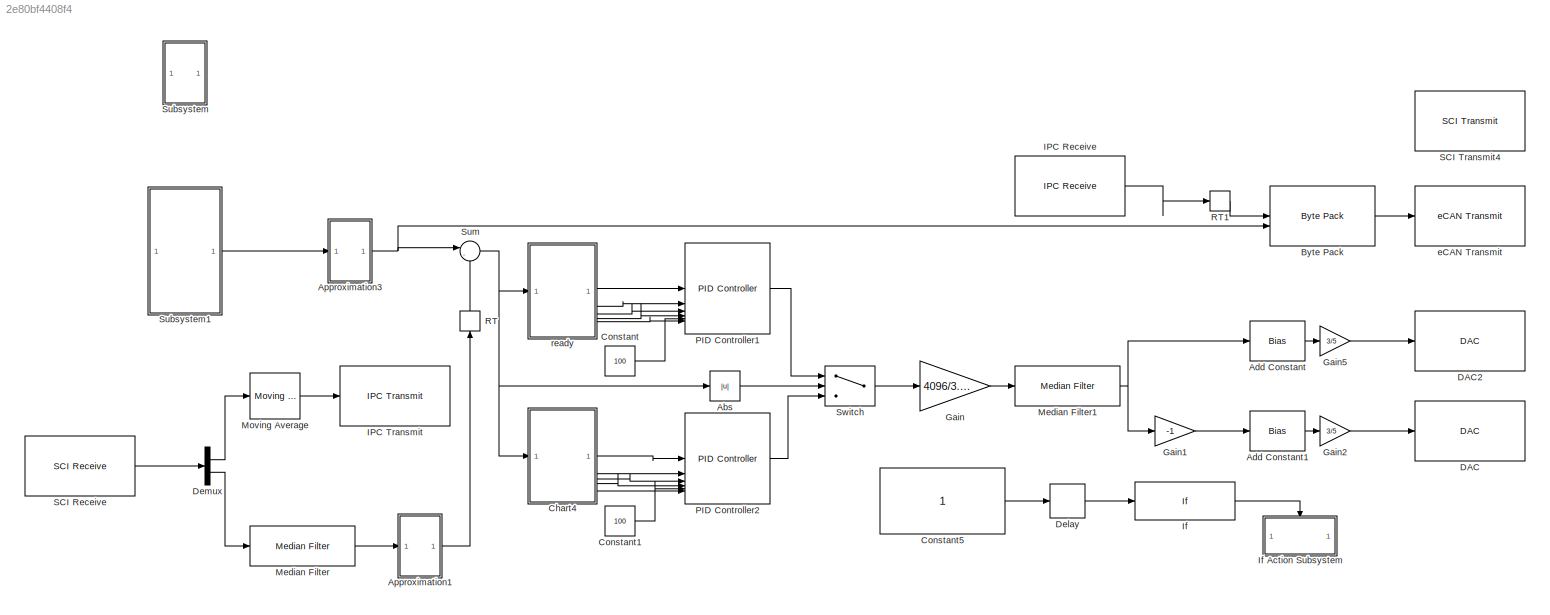
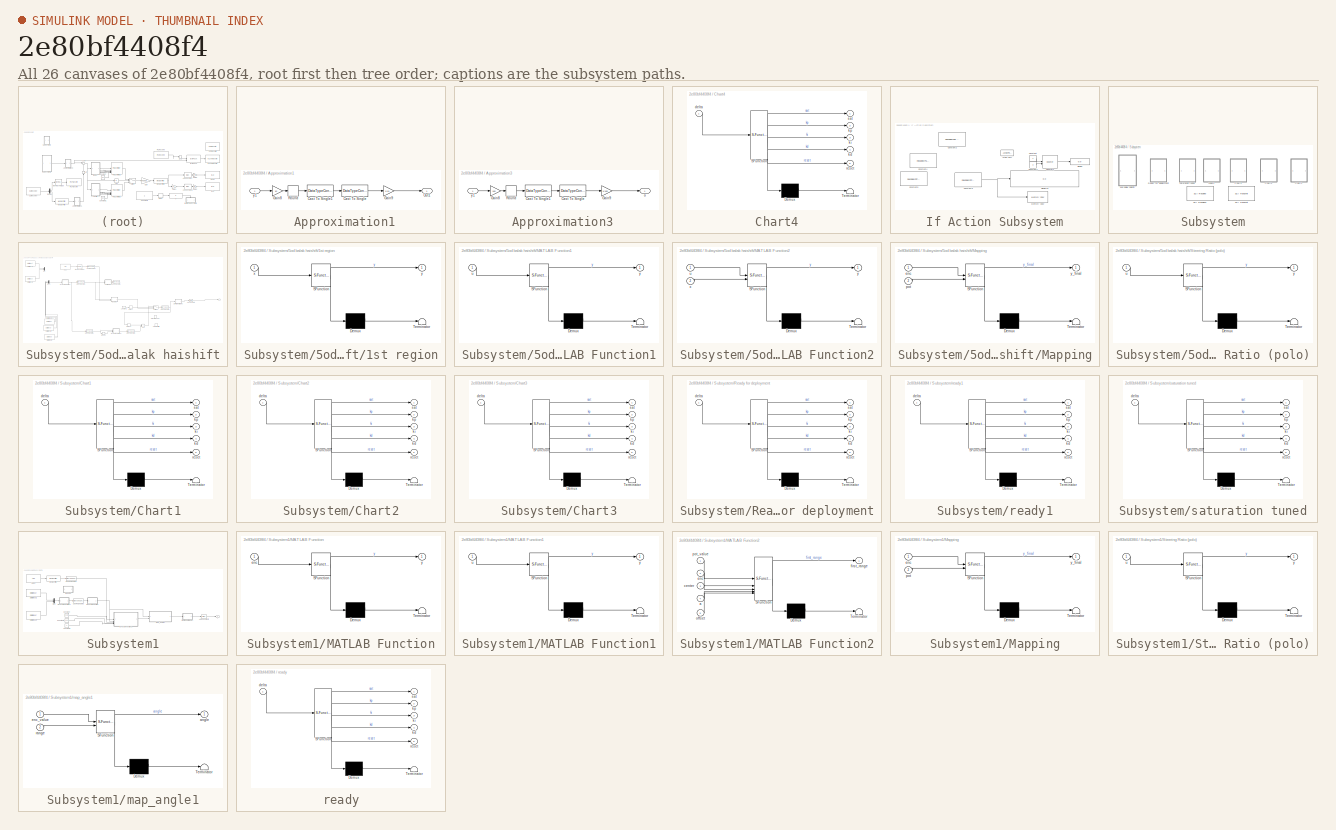
[diagram: thumbnail index - all 26 canvases of the model, root first then tree order]
MODEL slx_2e80bf4408f4
KIND model
CONFIG AbsTol = auto
CONFIG EnableMultiTasking = on
CONFIG FixedStep = auto
CONFIG MaxStep = auto
CONFIG MinStep = auto
CONFIG RelTol = 1e-3
CONFIG SampleTimeConstraint = Unconstrained
CONFIG SolverName = FixedStepDiscrete
CONFIG StartTime = 0.0
CONFIG StopTime = Inf
WORKSPACE source: mxarray member
WORKSPACE x = 1
BLOCK [SubSystem]  Approximation1
BLOCK [DataTypeConversion]  Approximation1/Cast To Single
  OutDataTypeStr = single
  RndMeth = Floor
  SaturateOnIntegerOverflow = off
BLOCK [DataTypeConversion]  Approximation1/Cast To Single1
  OutDataTypeStr = int32
  RndMeth = Floor
  SaturateOnIntegerOverflow = off
BLOCK [Gain]  Approximation1/Gain8
  Gain = 10
BLOCK [Gain]  Approximation1/Gain9
  Gain = 1/10
BLOCK [Outport]  Approximation1/Out1
BLOCK [Rounding]  Approximation1/Round
  Operator = round
BLOCK [Inport]  Approximation1/y1
BLOCK [SubSystem]  Approximation3
BLOCK [DataTypeConversion]  Approximation3/Cast To Single
  OutDataTypeStr = single
  RndMeth = Floor
  SaturateOnIntegerOverflow = off
BLOCK [DataTypeConversion]  Approximation3/Cast To Single1
  OutDataTypeStr = int32
  RndMeth = Floor
  SaturateOnIntegerOverflow = off
BLOCK [Gain]  Approximation3/Gain8
  Gain = 100
BLOCK [Gain]  Approximation3/Gain9
  Gain = 1/100
BLOCK [Rounding]  Approximation3/Round
  Operator = round
BLOCK [Outport]  Approximation3/o
BLOCK [Inport]  Approximation3/y1
BLOCK [Abs] Abs
  SaturateOnIntegerOverflow = off
BLOCK [Bias] Add Constant
  Bias = 4096*2.5/3.01
  SaturateOnIntegerOverflow = off
BLOCK [Bias] Add Constant1
  Bias = 4096*2.5/3.01
  SaturateOnIntegerOverflow = off
BLOCK [Reference] Byte Pack  REF=svdutilitieslib/Byte Pack
  SourceBlock = svdutilitieslib/Byte Pack
  SourceType = Byte pack
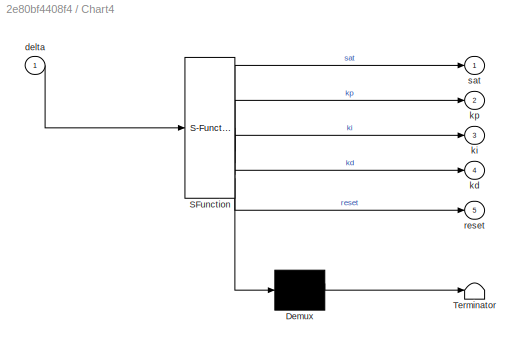
BLOCK [SubSystem] Chart4
  ErrorFcn = Stateflow.Translate.translate
  PermitHierarchicalResolution = ExplicitOnly
  SFBlockType = Chart
  TreatAsAtomicUnit = on
BLOCK [Demux] Chart4/ Demux 
  Outputs = 1
BLOCK [S-Function] Chart4/ SFunction 
  EnableBusSupport = on
  FunctionName = sf_sfun
  PortCounts = [1 6]
  SFcnIsStateOwnerBlock = off
  SFunctionDeploymentMode = off
  Tag = Stateflow S-Function 18
BLOCK [Terminator] Chart4/ Terminator 
BLOCK [Inport] Chart4/delta
BLOCK [Outport] Chart4/kd
  Port = 4
BLOCK [Outport] Chart4/ki
  Port = 3
BLOCK [Outport] Chart4/kp
  Port = 2
BLOCK [Outport] Chart4/reset
  Port = 5
BLOCK [Outport] Chart4/sat
BLOCK [Constant] Constant
  Value = 100
BLOCK [Constant] Constant1
  Value = 100
BLOCK [Constant] Constant5
  OutDataTypeStr = Inherit: Inherit via back propagation
BLOCK [Reference] DAC  REF=c2837xDlib/DAC
  SourceBlock = c2837xDlib/DAC
  SourceType = codertarget.tic2000.blocks.DACWrite
BLOCK [Reference] DAC2  REF=c2837xDlib/DAC
  SourceBlock = c2837xDlib/DAC
  SourceType = codertarget.tic2000.blocks.DACWrite
BLOCK [Delay] Delay
  DelayLength = 100
  InputPortMap = u0
BLOCK [Demux] Demux
  Outputs = 2
BLOCK [Gain] Gain
  Gain = 4096/3.01
  OutDataTypeStr = single
BLOCK [Gain] Gain1
  Gain = -1
  OutDataTypeStr = single
  SaturateOnIntegerOverflow = on
BLOCK [Gain] Gain2
  Gain = 3/5
  OutDataTypeStr = single
  SaturateOnIntegerOverflow = on
BLOCK [Gain] Gain5
  Gain = 3/5
  OutDataTypeStr = single
  SaturateOnIntegerOverflow = on
BLOCK [Reference] IPC Receive  REF=c2837xDlib/IPC Receive
  SourceBlock = c2837xDlib/IPC Receive
  SourceType = C28x IPC Receive
BLOCK [Reference] IPC Transmit  REF=c2837xDlib/IPC Transmit
  SourceBlock = c2837xDlib/IPC Transmit
  SourceType = C28x IPC Transmit
BLOCK [If] If
  IfExpression = u1 ~= 1
BLOCK [SubSystem] If Action Subsystem
  TreatAsAtomicUnit = on
BLOCK [ActionPort] If Action Subsystem/Action Port
  ActionPortLabel = if(u1 ~= 1)
BLOCK [Constant] If Action Subsystem/Constant
BLOCK [Constant] If Action Subsystem/Constant1
  Value = 0
BLOCK [Constant] If Action Subsystem/Constant2
  Commented = on
  OutDataTypeStr = uint32
  Value = hex2dec('FBBF301C')
BLOCK [Constant] If Action Subsystem/Constant3
  OutDataTypeStr = uint32
  Value = hex2dec('FFFF301F')
BLOCK [Constant] If Action Subsystem/Constant4
  Commented = on
  OutDataTypeStr = uint32
  Value = hex2dec('F1FF30FF')
BLOCK [Constant] If Action Subsystem/Constant5
  Commented = on
  OutDataTypeStr = uint32
  Value = hex2dec('FFFFFE00')
BLOCK [Reference] If Action Subsystem/Counter1  REF=dspswit3/Counter
  SourceBlock = dspswit3/Counter
  SourceType = Counter
BLOCK [Display] If Action Subsystem/Display
  Decimation = 1
BLOCK [Display] If Action Subsystem/Display10
  Decimation = 1
  Format = binary (Stored Integer)
BLOCK [Reference] If Action Subsystem/Memory Copy  REF=idelinklib_common/Memory Copy
  SourceBlock = idelinklib_common/Memory Copy
  SourceType = Memory Copy
BLOCK [Reference] Median Filter  REF=dspstat3/Median
Filter
  SourceBlock = dspstat3/Median\nFilter
  SourceType = dsp.simulink.MedianFilter
BLOCK [Reference] Median Filter1  REF=dspstat3/Median
Filter
  SourceBlock = dspstat3/Median\nFilter
  SourceType = dsp.simulink.MedianFilter
BLOCK [Reference] Moving Average  REF=dspstat3/Moving
Average
  SourceBlock = dspstat3/Moving\nAverage
  SourceType = dsp.simulink.MovingAverage
BLOCK [Reference] PID Controller1  REF=slpidlib/PID Controller
  SourceBlock = slpidlib/PID Controller
  SourceType = PID 1dof
BLOCK [Reference] PID Controller2  REF=slpidlib/PID Controller
  SourceBlock = slpidlib/PID Controller
  SourceType = PID 1dof
BLOCK [RateTransition] RT
  NameLocation = right
  OutPortSampleTime = 0.001
BLOCK [RateTransition] RT1
  OutPortSampleTime = 0.001
BLOCK [Reference] SCI Receive  REF=c280xlib/SCI Receive
  SourceBlock = c280xlib/SCI Receive
  SourceType = C28x SCI Receive
BLOCK [Reference] SCI Transmit4  REF=c280xlib/SCI Transmit
  SourceBlock = c280xlib/SCI Transmit
  SourceType = C28x SCI Transmit
BLOCK [SubSystem] Subsystem
  Commented = on
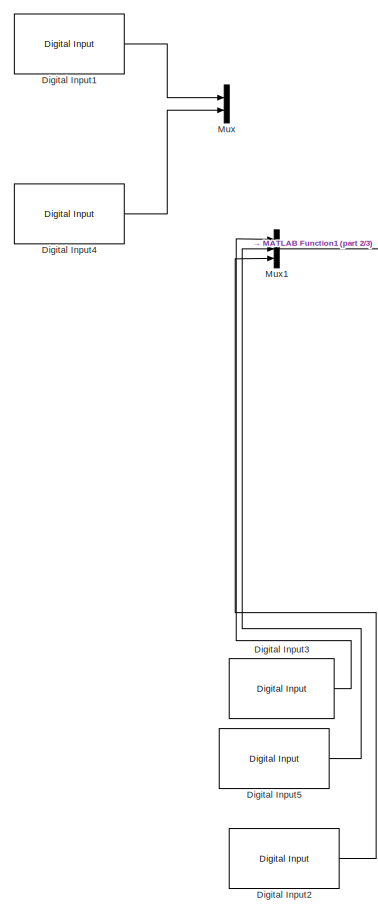
[diagram: Subsystem/5od balak haishift - part 1/3, left side, full height]
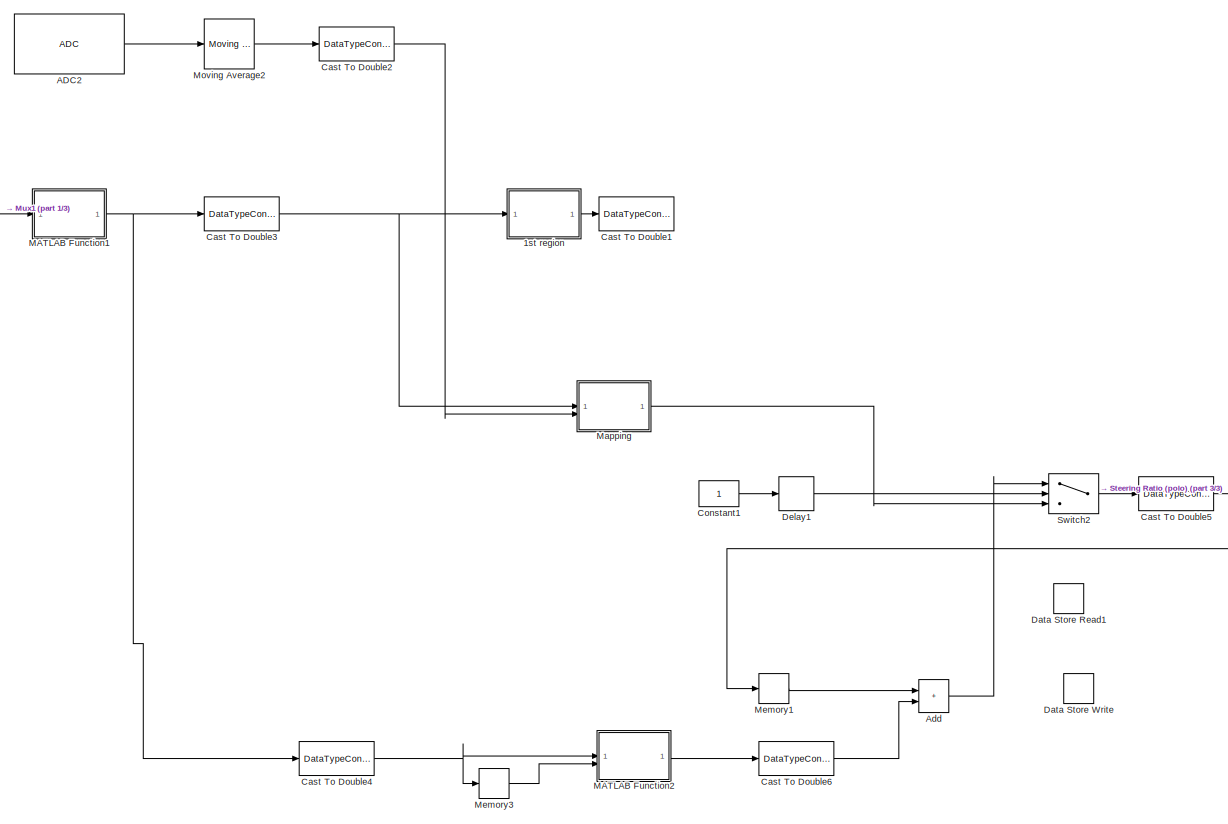
[diagram: Subsystem/5od balak haishift - part 2/3, center side, full height]
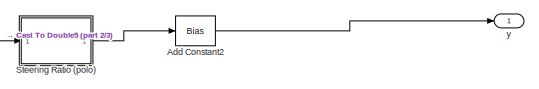
[diagram: Subsystem/5od balak haishift - part 3/3, middle right region]
BLOCK [SubSystem] Subsystem/5od balak haishift
  Commented = on
BLOCK [SubSystem] Subsystem/5od balak haishift/1st region
  Commented = on
  ErrorFcn = Stateflow.Translate.translate
  PermitHierarchicalResolution = ExplicitOnly
  SFBlockType = MATLAB Function
  TreatAsAtomicUnit = on
BLOCK [Demux] Subsystem/5od balak haishift/1st region/ Demux 
  Outputs = 1
BLOCK [S-Function] Subsystem/5od balak haishift/1st region/ SFunction 
  EnableBusSupport = on
  FunctionName = sf_sfun
  PortCounts = [1 2]
  SFcnIsStateOwnerBlock = off
  SFunctionDeploymentMode = off
  Tag = Stateflow S-Function 4
BLOCK [Terminator] Subsystem/5od balak haishift/1st region/ Terminator 
BLOCK [Inport] Subsystem/5od balak haishift/1st region/x
BLOCK [Outport] Subsystem/5od balak haishift/1st region/y
BLOCK [Reference] Subsystem/5od balak haishift/ADC2  REF=c2802xlib/ADC
  SourceBlock = c2802xlib/ADC
  SourceType = C2802x/03x/05x/06x/M3x/37x/07x/004x/38x ADC
  UserDataPersistent = on
BLOCK [Sum] Subsystem/5od balak haishift/Add
  IconShape = rectangular
BLOCK [Bias] Subsystem/5od balak haishift/Add Constant2
  Bias = -0.3005
  SaturateOnIntegerOverflow = off
BLOCK [DataTypeConversion] Subsystem/5od balak haishift/Cast To Double1
  Commented = through
  OutDataTypeStr = uint16
  RndMeth = Floor
  SaturateOnIntegerOverflow = off
BLOCK [DataTypeConversion] Subsystem/5od balak haishift/Cast To Double2
  Commented = through
  OutDataTypeStr = uint16
  RndMeth = Floor
  SaturateOnIntegerOverflow = off
BLOCK [DataTypeConversion] Subsystem/5od balak haishift/Cast To Double3
  OutDataTypeStr = single
  RndMeth = Floor
  SaturateOnIntegerOverflow = off
BLOCK [DataTypeConversion] Subsystem/5od balak haishift/Cast To Double4
  OutDataTypeStr = double
  RndMeth = Floor
  SaturateOnIntegerOverflow = off
BLOCK [DataTypeConversion] Subsystem/5od balak haishift/Cast To Double5
  OutDataTypeStr = single
  RndMeth = Floor
  SaturateOnIntegerOverflow = off
BLOCK [DataTypeConversion] Subsystem/5od balak haishift/Cast To Double6
  OutDataTypeStr = single
  RndMeth = Floor
  SaturateOnIntegerOverflow = off
BLOCK [Constant] Subsystem/5od balak haishift/Constant1
  OutDataTypeStr = Inherit: Inherit via back propagation
BLOCK [DataStoreRead] Subsystem/5od balak haishift/Data Store Read1
  Commented = on
  DataStoreElements = A
  IndexOptions = Index vector (dialog)
  Indices = 1
  OutputSizes = 1
BLOCK [DataStoreWrite] Subsystem/5od balak haishift/Data Store Write
  Commented = on
  DataStoreElements = A
  IndexOptions = Index vector (dialog)
  Indices = 1
  OutputSizes = 1
BLOCK [Delay] Subsystem/5od balak haishift/Delay1
  DelayLength = 3000
  InputPortMap = u0
BLOCK [Reference] Subsystem/5od balak haishift/Digital Input1  REF=c2837xDlib/Digital Input
  Commented = on
  SourceBlock = c2837xDlib/Digital Input
  SourceType = F2837x GPIO Digital Input
  UserDataPersistent = on
BLOCK [Reference] Subsystem/5od balak haishift/Digital Input2  REF=c2837xDlib/Digital Input
  SourceBlock = c2837xDlib/Digital Input
  SourceType = F2837x GPIO Digital Input
  UserDataPersistent = on
BLOCK [Reference] Subsystem/5od balak haishift/Digital Input3  REF=c2837xDlib/Digital Input
  SourceBlock = c2837xDlib/Digital Input
  SourceType = F2837x GPIO Digital Input
  UserDataPersistent = on
BLOCK [Reference] Subsystem/5od balak haishift/Digital Input4  REF=c2837xDlib/Digital Input
  Commented = on
  SourceBlock = c2837xDlib/Digital Input
  SourceType = F2837x GPIO Digital Input
  UserDataPersistent = on
BLOCK [Reference] Subsystem/5od balak haishift/Digital Input5  REF=c2837xDlib/Digital Input
  SourceBlock = c2837xDlib/Digital Input
  SourceType = F2837x GPIO Digital Input
  UserDataPersistent = on
BLOCK [SubSystem] Subsystem/5od balak haishift/MATLAB Function1
  ErrorFcn = Stateflow.Translate.translate
  PermitHierarchicalResolution = ExplicitOnly
  SFBlockType = MATLAB Function
  TreatAsAtomicUnit = on
BLOCK [Demux] Subsystem/5od balak haishift/MATLAB Function1/ Demux 
  Outputs = 1
BLOCK [S-Function] Subsystem/5od balak haishift/MATLAB Function1/ SFunction 
  EnableBusSupport = on
  FunctionName = sf_sfun
  PortCounts = [1 2]
  SFcnIsStateOwnerBlock = off
  SFunctionDeploymentMode = off
  Tag = Stateflow S-Function 9
BLOCK [Terminator] Subsystem/5od balak haishift/MATLAB Function1/ Terminator 
BLOCK [Inport] Subsystem/5od balak haishift/MATLAB Function1/u
BLOCK [Outport] Subsystem/5od balak haishift/MATLAB Function1/y
BLOCK [SubSystem] Subsystem/5od balak haishift/MATLAB Function2
  ErrorFcn = Stateflow.Translate.translate
  PermitHierarchicalResolution = ExplicitOnly
  SFBlockType = MATLAB Function
  TreatAsAtomicUnit = on
BLOCK [Demux] Subsystem/5od balak haishift/MATLAB Function2/ Demux 
  Outputs = 1
BLOCK [S-Function] Subsystem/5od balak haishift/MATLAB Function2/ SFunction 
  EnableBusSupport = on
  FunctionName = sf_sfun
  PortCounts = [2 2]
  SFcnIsStateOwnerBlock = off
  SFunctionDeploymentMode = off
  Tag = Stateflow S-Function 10
BLOCK [Terminator] Subsystem/5od balak haishift/MATLAB Function2/ Terminator 
BLOCK [Inport] Subsystem/5od balak haishift/MATLAB Function2/u
BLOCK [Inport] Subsystem/5od balak haishift/MATLAB Function2/x
  Port = 2
BLOCK [Outport] Subsystem/5od balak haishift/MATLAB Function2/y
BLOCK [SubSystem] Subsystem/5od balak haishift/Mapping
  ErrorFcn = Stateflow.Translate.translate
  PermitHierarchicalResolution = ExplicitOnly
  SFBlockType = MATLAB Function
  TreatAsAtomicUnit = on
BLOCK [Demux] Subsystem/5od balak haishift/Mapping/ Demux 
  Outputs = 1
BLOCK [S-Function] Subsystem/5od balak haishift/Mapping/ SFunction 
  EnableBusSupport = on
  FunctionName = sf_sfun
  PortCounts = [2 2]
  SFcnIsStateOwnerBlock = off
  SFunctionDeploymentMode = off
  Tag = Stateflow S-Function 11
BLOCK [Terminator] Subsystem/5od balak haishift/Mapping/ Terminator 
BLOCK [Inport] Subsystem/5od balak haishift/Mapping/enc
BLOCK [Inport] Subsystem/5od balak haishift/Mapping/pot
  Port = 2
BLOCK [Outport] Subsystem/5od balak haishift/Mapping/y_final
BLOCK [Memory] Subsystem/5od balak haishift/Memory1
  InheritSampleTime = on
BLOCK [Memory] Subsystem/5od balak haishift/Memory3
  InheritSampleTime = on
BLOCK [Reference] Subsystem/5od balak haishift/Moving Average2  REF=dspstat3/Moving
Average
  SourceBlock = dspstat3/Moving\nAverage
  SourceType = dsp.simulink.MovingAverage
BLOCK [Mux] Subsystem/5od balak haishift/Mux
  Commented = on
  DisplayOption = bar
  Inputs = 2
BLOCK [Mux] Subsystem/5od balak haishift/Mux1
  DisplayOption = bar
  Inputs = 3
BLOCK [SubSystem] Subsystem/5od balak haishift/Steering Ratio (polo)
  ErrorFcn = Stateflow.Translate.translate
  PermitHierarchicalResolution = ExplicitOnly
  SFBlockType = MATLAB Function
  TreatAsAtomicUnit = on
BLOCK [Demux] Subsystem/5od balak haishift/Steering Ratio (polo)/ Demux 
  Outputs = 1
BLOCK [S-Function] Subsystem/5od balak haishift/Steering Ratio (polo)/ SFunction 
  EnableBusSupport = on
  FunctionName = sf_sfun
  PortCounts = [1 2]
  SFcnIsStateOwnerBlock = off
  SFunctionDeploymentMode = off
  Tag = Stateflow S-Function 12
BLOCK [Terminator] Subsystem/5od balak haishift/Steering Ratio (polo)/ Terminator 
BLOCK [Inport] Subsystem/5od balak haishift/Steering Ratio (polo)/u
BLOCK [Outport] Subsystem/5od balak haishift/Steering Ratio (polo)/y
BLOCK [Switch] Subsystem/5od balak haishift/Switch2
  Criteria = u2 ~= 0
  InputSameDT = off
  SaturateOnIntegerOverflow = off
BLOCK [Outport] Subsystem/5od balak haishift/y
BLOCK [SubSystem] Subsystem/Chart1
  Commented = on
  ErrorFcn = Stateflow.Translate.translate
  PermitHierarchicalResolution = ExplicitOnly
  SFBlockType = Chart
  TreatAsAtomicUnit = on
BLOCK [Demux] Subsystem/Chart1/ Demux 
  Outputs = 1
BLOCK [S-Function] Subsystem/Chart1/ SFunction 
  EnableBusSupport = on
  FunctionName = sf_sfun
  PortCounts = [1 6]
  SFcnIsStateOwnerBlock = off
  SFunctionDeploymentMode = off
  Tag = Stateflow S-Function 1
BLOCK [Terminator] Subsystem/Chart1/ Terminator 
BLOCK [Inport] Subsystem/Chart1/delta
BLOCK [Outport] Subsystem/Chart1/kd
  Port = 4
BLOCK [Outport] Subsystem/Chart1/ki
  Port = 3
BLOCK [Outport] Subsystem/Chart1/kp
  Port = 2
BLOCK [Outport] Subsystem/Chart1/reset
  Port = 5
BLOCK [Outport] Subsystem/Chart1/sat
BLOCK [SubSystem] Subsystem/Chart2
  Commented = on
  ErrorFcn = Stateflow.Translate.translate
  PermitHierarchicalResolution = ExplicitOnly
  SFBlockType = Chart
  TreatAsAtomicUnit = on
BLOCK [Demux] Subsystem/Chart2/ Demux 
  Outputs = 1
BLOCK [S-Function] Subsystem/Chart2/ SFunction 
  EnableBusSupport = on
  FunctionName = sf_sfun
  PortCounts = [1 6]
  SFcnIsStateOwnerBlock = off
  SFunctionDeploymentMode = off
  Tag = Stateflow S-Function 3
BLOCK [Terminator] Subsystem/Chart2/ Terminator 
BLOCK [Inport] Subsystem/Chart2/delta
BLOCK [Outport] Subsystem/Chart2/kd
  Port = 4
BLOCK [Outport] Subsystem/Chart2/ki
  Port = 3
BLOCK [Outport] Subsystem/Chart2/kp
  Port = 2
BLOCK [Outport] Subsystem/Chart2/reset
  Port = 5
BLOCK [Outport] Subsystem/Chart2/sat
BLOCK [SubSystem] Subsystem/Chart3
  Commented = on
  ErrorFcn = Stateflow.Translate.translate
  PermitHierarchicalResolution = ExplicitOnly
  SFBlockType = Chart
  TreatAsAtomicUnit = on
BLOCK [Demux] Subsystem/Chart3/ Demux 
  Outputs = 1
BLOCK [S-Function] Subsystem/Chart3/ SFunction 
  EnableBusSupport = on
  FunctionName = sf_sfun
  PortCounts = [1 6]
  SFcnIsStateOwnerBlock = off
  SFunctionDeploymentMode = off
  Tag = Stateflow S-Function 15
BLOCK [Terminator] Subsystem/Chart3/ Terminator 
BLOCK [Inport] Subsystem/Chart3/delta
BLOCK [Outport] Subsystem/Chart3/kd
  Port = 4
BLOCK [Outport] Subsystem/Chart3/ki
  Port = 3
BLOCK [Outport] Subsystem/Chart3/kp
  Port = 2
BLOCK [Outport] Subsystem/Chart3/reset
  Port = 5
BLOCK [Outport] Subsystem/Chart3/sat
BLOCK [SubSystem] Subsystem/Ready for deployment
  Commented = on
  ErrorFcn = Stateflow.Translate.translate
  PermitHierarchicalResolution = ExplicitOnly
  SFBlockType = Chart
  TreatAsAtomicUnit = on
BLOCK [Demux] Subsystem/Ready for deployment/ Demux 
  Outputs = 1
BLOCK [S-Function] Subsystem/Ready for deployment/ SFunction 
  EnableBusSupport = on
  FunctionName = sf_sfun
  PortCounts = [1 6]
  SFcnIsStateOwnerBlock = off
  SFunctionDeploymentMode = off
  Tag = Stateflow S-Function 2
BLOCK [Terminator] Subsystem/Ready for deployment/ Terminator 
BLOCK [Inport] Subsystem/Ready for deployment/delta
BLOCK [Outport] Subsystem/Ready for deployment/kd
  Port = 4
BLOCK [Outport] Subsystem/Ready for deployment/ki
  Port = 3
BLOCK [Outport] Subsystem/Ready for deployment/kp
  Port = 2
BLOCK [Outport] Subsystem/Ready for deployment/reset
  Port = 5
BLOCK [Outport] Subsystem/Ready for deployment/sat
BLOCK [Reference] Subsystem/SCI Receive1  REF=c280xlib/SCI Receive
  Commented = on
  SourceBlock = c280xlib/SCI Receive
  SourceType = C28x SCI Receive
BLOCK [Reference] Subsystem/SCI Transmit  REF=c280xlib/SCI Transmit
  Commented = on
  SourceBlock = c280xlib/SCI Transmit
  SourceType = C28x SCI Transmit
BLOCK [SubSystem] Subsystem/ready1
  Commented = on
  ErrorFcn = Stateflow.Translate.translate
  PermitHierarchicalResolution = ExplicitOnly
  SFBlockType = Chart
  TreatAsAtomicUnit = on
BLOCK [Demux] Subsystem/ready1/ Demux 
  Outputs = 1
BLOCK [S-Function] Subsystem/ready1/ SFunction 
  EnableBusSupport = on
  FunctionName = sf_sfun
  PortCounts = [1 6]
  SFcnIsStateOwnerBlock = off
  SFunctionDeploymentMode = off
  Tag = Stateflow S-Function 17
BLOCK [Terminator] Subsystem/ready1/ Terminator 
BLOCK [Inport] Subsystem/ready1/delta
BLOCK [Outport] Subsystem/ready1/kd
  Port = 4
BLOCK [Outport] Subsystem/ready1/ki
  Port = 3
BLOCK [Outport] Subsystem/ready1/kp
  Port = 2
BLOCK [Outport] Subsystem/ready1/reset
  Port = 5
BLOCK [Outport] Subsystem/ready1/sat
BLOCK [SubSystem] Subsystem/saturation tuned
  Commented = on
  ErrorFcn = Stateflow.Translate.translate
  PermitHierarchicalResolution = ExplicitOnly
  SFBlockType = Chart
  TreatAsAtomicUnit = on
BLOCK [Demux] Subsystem/saturation tuned/ Demux 
  Outputs = 1
BLOCK [S-Function] Subsystem/saturation tuned/ SFunction 
  EnableBusSupport = on
  FunctionName = sf_sfun
  PortCounts = [1 6]
  SFcnIsStateOwnerBlock = off
  SFunctionDeploymentMode = off
  Tag = Stateflow S-Function 14
BLOCK [Terminator] Subsystem/saturation tuned/ Terminator 
BLOCK [Inport] Subsystem/saturation tuned/delta
BLOCK [Outport] Subsystem/saturation tuned/kd
  Port = 4
BLOCK [Outport] Subsystem/saturation tuned/ki
  Port = 3
BLOCK [Outport] Subsystem/saturation tuned/kp
  Port = 2
BLOCK [Outport] Subsystem/saturation tuned/reset
  Port = 5
BLOCK [Outport] Subsystem/saturation tuned/sat
BLOCK [SubSystem] Subsystem1
BLOCK [Reference] Subsystem1/ADC2  REF=c2802xlib/ADC
  SourceBlock = c2802xlib/ADC
  SourceType = ADC Type 3-5
  UserDataPersistent = on
BLOCK [Bias] Subsystem1/Add Constant2
  Bias = -0.3005
  SaturateOnIntegerOverflow = off
BLOCK [DataTypeConversion] Subsystem1/Cast To Double2
  Commented = through
  OutDataTypeStr = uint16
  RndMeth = Floor
  SaturateOnIntegerOverflow = off
BLOCK [DataTypeConversion] Subsystem1/Cast To Double3
  OutDataTypeStr = single
  RndMeth = Floor
  SaturateOnIntegerOverflow = off
BLOCK [Constant] Subsystem1/Constant
  OutDataTypeStr = single
  Value = 2645
BLOCK [Constant] Subsystem1/Constant1
  OutDataTypeStr = single
  Value = 440
BLOCK [Constant] Subsystem1/Constant2
  OutDataTypeStr = single
  Value = 0
BLOCK [Reference] Subsystem1/Digital Input1  REF=c2837xDlib/Digital Input
  SourceBlock = c2837xDlib/Digital Input
  SourceType = F2837x GPIO Digital Input
  UserDataPersistent = on
BLOCK [Reference] Subsystem1/Digital Input4  REF=c2837xDlib/Digital Input
  SourceBlock = c2837xDlib/Digital Input
  SourceType = F2837x GPIO Digital Input
  UserDataPersistent = on
BLOCK [SubSystem] Subsystem1/MATLAB Function
  ErrorFcn = Stateflow.Translate.translate
  PermitHierarchicalResolution = ExplicitOnly
  SFBlockType = MATLAB Function
  TreatAsAtomicUnit = on
BLOCK [Demux] Subsystem1/MATLAB Function/ Demux 
  Outputs = 1
BLOCK [S-Function] Subsystem1/MATLAB Function/ SFunction 
  EnableBusSupport = on
  FunctionName = sf_sfun
  PortCounts = [1 2]
  SFcnIsStateOwnerBlock = off
  SFunctionDeploymentMode = off
  Tag = Stateflow S-Function 28
BLOCK [Terminator] Subsystem1/MATLAB Function/ Terminator 
BLOCK [Inport] Subsystem1/MATLAB Function/enc
BLOCK [Outport] Subsystem1/MATLAB Function/y
BLOCK [SubSystem] Subsystem1/MATLAB Function1
  ErrorFcn = Stateflow.Translate.translate
  PermitHierarchicalResolution = ExplicitOnly
  SFBlockType = MATLAB Function
  TreatAsAtomicUnit = on
BLOCK [Demux] Subsystem1/MATLAB Function1/ Demux 
  Outputs = 1
BLOCK [S-Function] Subsystem1/MATLAB Function1/ SFunction 
  EnableBusSupport = on
  FunctionName = sf_sfun
  PortCounts = [1 2]
  SFcnIsStateOwnerBlock = off
  SFunctionDeploymentMode = off
  Tag = Stateflow S-Function 6
BLOCK [Terminator] Subsystem1/MATLAB Function1/ Terminator 
BLOCK [Inport] Subsystem1/MATLAB Function1/u
BLOCK [Outport] Subsystem1/MATLAB Function1/y
BLOCK [SubSystem] Subsystem1/MATLAB Function2
  ErrorFcn = Stateflow.Translate.translate
  PermitHierarchicalResolution = ExplicitOnly
  SFBlockType = MATLAB Function
  TreatAsAtomicUnit = on
BLOCK [Demux] Subsystem1/MATLAB Function2/ Demux 
  Outputs = 1
BLOCK [S-Function] Subsystem1/MATLAB Function2/ SFunction 
  EnableBusSupport = on
  FunctionName = sf_sfun
  PortCounts = [5 2]
  SFcnIsStateOwnerBlock = off
  SFunctionDeploymentMode = off
  Tag = Stateflow S-Function 13
BLOCK [Terminator] Subsystem1/MATLAB Function2/ Terminator 
BLOCK [Inport] Subsystem1/MATLAB Function2/a
  Port = 4
BLOCK [Inport] Subsystem1/MATLAB Function2/center
  Port = 3
BLOCK [Inport] Subsystem1/MATLAB Function2/enc
  Port = 2
BLOCK [Outport] Subsystem1/MATLAB Function2/first_range
BLOCK [Inport] Subsystem1/MATLAB Function2/offset
  Port = 5
BLOCK [Inport] Subsystem1/MATLAB Function2/pot_value
BLOCK [SubSystem] Subsystem1/Mapping
  Commented = on
  ErrorFcn = Stateflow.Translate.translate
  PermitHierarchicalResolution = ExplicitOnly
  SFBlockType = MATLAB Function
  TreatAsAtomicUnit = on
BLOCK [Demux] Subsystem1/Mapping/ Demux 
  Outputs = 1
BLOCK [S-Function] Subsystem1/Mapping/ SFunction 
  EnableBusSupport = on
  FunctionName = sf_sfun
  PortCounts = [2 2]
  SFcnIsStateOwnerBlock = off
  SFunctionDeploymentMode = off
  Tag = Stateflow S-Function 7
BLOCK [Terminator] Subsystem1/Mapping/ Terminator 
BLOCK [Inport] Subsystem1/Mapping/enc
BLOCK [Inport] Subsystem1/Mapping/pot
  Port = 2
BLOCK [Outport] Subsystem1/Mapping/y_final
BLOCK [Reference] Subsystem1/Median Filter  REF=dspstat3/Median
Filter
  SourceBlock = dspstat3/Median\nFilter
  SourceType = dsp.simulink.MedianFilter
BLOCK [Mux] Subsystem1/Mux
  DisplayOption = bar
  Inputs = 2
BLOCK [SubSystem] Subsystem1/Steering Ratio (polo)
  ErrorFcn = Stateflow.Translate.translate
  PermitHierarchicalResolution = ExplicitOnly
  SFBlockType = MATLAB Function
  TreatAsAtomicUnit = on
BLOCK [Demux] Subsystem1/Steering Ratio (polo)/ Demux 
  Outputs = 1
BLOCK [S-Function] Subsystem1/Steering Ratio (polo)/ SFunction 
  EnableBusSupport = on
  FunctionName = sf_sfun
  PortCounts = [1 2]
  SFcnIsStateOwnerBlock = off
  SFunctionDeploymentMode = off
  Tag = Stateflow S-Function 8
BLOCK [Terminator] Subsystem1/Steering Ratio (polo)/ Terminator 
BLOCK [Inport] Subsystem1/Steering Ratio (polo)/u
BLOCK [Outport] Subsystem1/Steering Ratio (polo)/y
BLOCK [SubSystem] Subsystem1/map_angle1
  ErrorFcn = Stateflow.Translate.translate
  PermitHierarchicalResolution = ExplicitOnly
  SFBlockType = MATLAB Function
  TreatAsAtomicUnit = on
BLOCK [Demux] Subsystem1/map_angle1/ Demux 
  Outputs = 1
BLOCK [S-Function] Subsystem1/map_angle1/ SFunction 
  EnableBusSupport = on
  FunctionName = sf_sfun
  PortCounts = [2 2]
  SFcnIsStateOwnerBlock = off
  SFunctionDeploymentMode = off
  Tag = Stateflow S-Function 5
BLOCK [Terminator] Subsystem1/map_angle1/ Terminator 
BLOCK [Outport] Subsystem1/map_angle1/angle
BLOCK [Inport] Subsystem1/map_angle1/enc_value
BLOCK [Inport] Subsystem1/map_angle1/range
  Port = 2
BLOCK [Outport] Subsystem1/y
BLOCK [Sum] Sum
  Inputs = |-+
BLOCK [Switch] Switch
  Criteria = u2 > Threshold
  InputSameDT = off
  SaturateOnIntegerOverflow = off
  Threshold = 5
BLOCK [Reference] eCAN Transmit  REF=c280xlib/eCAN Transmit
  LibrarySourceBlock = c2837xDlib/eCAN Transmit
  SourceBlock = c280xlib/eCAN Transmit
  SourceType = C28x eCAN Transmit
BLOCK [SubSystem] ready
  ErrorFcn = Stateflow.Translate.translate
  PermitHierarchicalResolution = ExplicitOnly
  SFBlockType = Chart
  TreatAsAtomicUnit = on
BLOCK [Demux] ready/ Demux 
  Outputs = 1
BLOCK [S-Function] ready/ SFunction 
  EnableBusSupport = on
  FunctionName = sf_sfun
  PortCounts = [1 6]
  SFcnIsStateOwnerBlock = off
  SFunctionDeploymentMode = off
  Tag = Stateflow S-Function 16
BLOCK [Terminator] ready/ Terminator 
BLOCK [Inport] ready/delta
BLOCK [Outport] ready/kd
  Port = 4
BLOCK [Outport] ready/ki
  Port = 3
BLOCK [Outport] ready/kp
  Port = 2
BLOCK [Outport] ready/reset
  Port = 5
BLOCK [Outport] ready/sat
LINE  Approximation1/Cast To Single1:1 ->  Approximation1/Cast To Single:1
LINE  Approximation1/Cast To Single:1 ->  Approximation1/Gain9:1
LINE  Approximation1/Gain8:1 ->  Approximation1/Round:1
LINE  Approximation1/Gain9:1 ->  Approximation1/Out1:1
LINE  Approximation1/Round:1 ->  Approximation1/Cast To Single1:1
LINE  Approximation1/y1:1 ->  Approximation1/Gain8:1
LINE  Approximation1:1 -> RT:1
LINE  Approximation3/Cast To Single1:1 ->  Approximation3/Cast To Single:1
LINE  Approximation3/Cast To Single:1 ->  Approximation3/Gain9:1
LINE  Approximation3/Gain8:1 ->  Approximation3/Round:1
LINE  Approximation3/Gain9:1 ->  Approximation3/o:1
LINE  Approximation3/Round:1 ->  Approximation3/Cast To Single1:1
LINE  Approximation3/y1:1 ->  Approximation3/Gain8:1
NET  Approximation3:1 -> Byte Pack:2, Sum:1
LINE Abs:1 -> Switch:2
LINE Add Constant1:1 -> Gain2:1
LINE Add Constant:1 -> Gain5:1
LINE Byte Pack:1 -> eCAN Transmit:1
LINE Chart4:1 -> PID Controller2:1
LINE Chart4:2 -> PID Controller2:2
LINE Chart4:3 -> PID Controller2:3
LINE Chart4:4 -> PID Controller2:4
LINE Chart4:5 -> PID Controller2:6
LINE Constant1:1 -> PID Controller2:5
LINE Constant5:1 -> Delay:1
LINE Constant:1 -> PID Controller1:5
LINE Delay:1 -> If:1
LINE Demux:1 -> Moving Average:1
LINE Demux:2 -> Median Filter:1
LINE Gain1:1 -> Add Constant1:1
LINE Gain2:1 -> DAC:1
LINE Gain5:1 -> DAC2:1
LINE Gain:1 -> Median Filter1:1
LINE IPC Receive:1 -> RT1:1
LINE If Action Subsystem/Constant1:1 -> If Action Subsystem/Counter1:2
NET If Action Subsystem/Constant3:1 -> If Action Subsystem/Display10:1, If Action Subsystem/Memory Copy:1
LINE If Action Subsystem/Constant:1 -> If Action Subsystem/Counter1:1
LINE If Action Subsystem/Counter1:1 -> If Action Subsystem/Display:1
LINE If:1 -> If Action Subsystem:ifaction
NET Median Filter1:1 -> Add Constant:1, Gain1:1
LINE Median Filter:1 ->  Approximation1:1
LINE Moving Average:1 -> IPC Transmit:1
LINE PID Controller1:1 -> Switch:1
LINE PID Controller2:1 -> Switch:3
LINE RT1:1 -> Byte Pack:1
LINE RT:1 -> Sum:2
LINE SCI Receive:1 -> Demux:1
LINE Subsystem/5od balak haishift/1st region:1 -> Subsystem/5od balak haishift/Cast To Double1:1
LINE Subsystem/5od balak haishift/ADC2:1 -> Subsystem/5od balak haishift/Moving Average2:1
LINE Subsystem/5od balak haishift/Add Constant2:1 -> Subsystem/5od balak haishift/y:1
LINE Subsystem/5od balak haishift/Add:1 -> Subsystem/5od balak haishift/Switch2:1
LINE Subsystem/5od balak haishift/Cast To Double2:1 -> Subsystem/5od balak haishift/Mapping:2
NET Subsystem/5od balak haishift/Cast To Double3:1 -> Subsystem/5od balak haishift/1st region:1, Subsystem/5od balak haishift/Mapping:1
NET Subsystem/5od balak haishift/Cast To Double4:1 -> Subsystem/5od balak haishift/MATLAB Function2:1, Subsystem/5od balak haishift/Memory3:1
NET Subsystem/5od balak haishift/Cast To Double5:1 -> Subsystem/5od balak haishift/Memory1:1, Subsystem/5od balak haishift/Steering Ratio (polo):1
LINE Subsystem/5od balak haishift/Cast To Double6:1 -> Subsystem/5od balak haishift/Add:2
LINE Subsystem/5od balak haishift/Constant1:1 -> Subsystem/5od balak haishift/Delay1:1
LINE Subsystem/5od balak haishift/Delay1:1 -> Subsystem/5od balak haishift/Switch2:2
LINE Subsystem/5od balak haishift/Digital Input1:1 -> Subsystem/5od balak haishift/Mux:1
LINE Subsystem/5od balak haishift/Digital Input2:1 -> Subsystem/5od balak haishift/Mux1:3
LINE Subsystem/5od balak haishift/Digital Input3:1 -> Subsystem/5od balak haishift/Mux1:1
LINE Subsystem/5od balak haishift/Digital Input4:1 -> Subsystem/5od balak haishift/Mux:2
LINE Subsystem/5od balak haishift/Digital Input5:1 -> Subsystem/5od balak haishift/Mux1:2
NET Subsystem/5od balak haishift/MATLAB Function1:1 -> Subsystem/5od balak haishift/Cast To Double3:1, Subsystem/5od balak haishift/Cast To Double4:1
LINE Subsystem/5od balak haishift/MATLAB Function2:1 -> Subsystem/5od balak haishift/Cast To Double6:1
LINE Subsystem/5od balak haishift/Mapping:1 -> Subsystem/5od balak haishift/Switch2:3
LINE Subsystem/5od balak haishift/Memory1:1 -> Subsystem/5od balak haishift/Add:1
LINE Subsystem/5od balak haishift/Memory3:1 -> Subsystem/5od balak haishift/MATLAB Function2:2
LINE Subsystem/5od balak haishift/Moving Average2:1 -> Subsystem/5od balak haishift/Cast To Double2:1
LINE Subsystem/5od balak haishift/Mux1:1 -> Subsystem/5od balak haishift/MATLAB Function1:1
LINE Subsystem/5od balak haishift/Steering Ratio (polo):1 -> Subsystem/5od balak haishift/Add Constant2:1
LINE Subsystem/5od balak haishift/Switch2:1 -> Subsystem/5od balak haishift/Cast To Double5:1
LINE Subsystem1/ADC2:1 -> Subsystem1/Median Filter:1
LINE Subsystem1/Add Constant2:1 -> Subsystem1/y:1
LINE Subsystem1/Cast To Double2:1 -> Subsystem1/MATLAB Function2:1
LINE Subsystem1/Cast To Double3:1 -> Subsystem1/MATLAB Function:1
LINE Subsystem1/Constant1:1 -> Subsystem1/MATLAB Function2:4
LINE Subsystem1/Constant2:1 -> Subsystem1/MATLAB Function2:5
LINE Subsystem1/Constant:1 -> Subsystem1/MATLAB Function2:3
LINE Subsystem1/Digital Input1:1 -> Subsystem1/Mux:1
LINE Subsystem1/Digital Input4:1 -> Subsystem1/Mux:2
LINE Subsystem1/MATLAB Function1:1 -> Subsystem1/Cast To Double3:1
LINE Subsystem1/MATLAB Function2:1 -> Subsystem1/map_angle1:2
NET Subsystem1/MATLAB Function:1 -> Subsystem1/MATLAB Function2:2, Subsystem1/map_angle1:1
LINE Subsystem1/Median Filter:1 -> Subsystem1/Cast To Double2:1
LINE Subsystem1/Mux:1 -> Subsystem1/MATLAB Function1:1
LINE Subsystem1/Steering Ratio (polo):1 -> Subsystem1/Add Constant2:1
LINE Subsystem1/map_angle1:1 -> Subsystem1/Steering Ratio (polo):1
LINE Subsystem1:1 ->  Approximation3:1
NET Sum:1 -> Abs:1, Chart4:1, ready:1
LINE Switch:1 -> Gain:1
LINE ready:1 -> PID Controller1:1
LINE ready:2 -> PID Controller1:2
LINE ready:3 -> PID Controller1:3
LINE ready:4 -> PID Controller1:4
LINE ready:5 -> PID Controller1:6
note: NET lines group one-source signal fan-out (src -> all destinations, sorted); 1:1 wires keep LINE
CHART Subsystem/Chart1 states=9 transitions=58
  STATE_LABEL 'init\nf20 = 0;\nf15 = 0;\nf10 = 0;\nkp = 0;\nki = 0;\nkd = 0;\nsat = 0;'
  STATE_LABEL 'state10\n\nif delta > 0\n    sat = 5;\nelse\n    sat = -5;\nend\nif f20 == 1 && f15==1 && f10==1\n    kp = 0.07;\nelseif f20==0 && f15==1 && f10==1\n    kp = 0.08;\nelseif f20==0 && f15==0 && f10==1\n    kp = 0.08;\nelse\n    kp= 0.09;\nend\nreset =0;'  <repeated x4 — deduplicated; at blocks: Chart1, Chart2, saturation tuned, Chart4>
  STATE_LABEL 'state13\n\nsat = double(delta);\nkp= 0.35;\nif (abs(delta)<=0.5)\n    ki=0.15;\nelse\n    ki=0.10;\nend\nreset = 1;'
  STATE_LABEL 'state12\n\nif delta > 0\n    sat = 1;\nelse\n    sat = -1;\nend\nkp= 0.3;\nreset =0;\n'
  STATE_LABEL 'state9\n\nif delta > 0\n    sat = 15;\nelse\n    sat = -15;\nend\nif f20 == 1\n    kp = 0.03;\nelse\n    kp = 0.04;\nend\nf15 = 1;\nreset=0;'
  STATE_LABEL 'state11\n\nif delta > 0\n    sat = 2;\nelse\n    sat = -2;\nend\nif f20 == 1 && f15==1 && f10==1\n    kp = 0.15;\nelseif f20==0 && f15==1 && f10==1\n    kp = 0.2;\nelseif f20==0 && f15==0 && f10==1\n    kp = 0.2;\nelse\n    kp= 0.22;\nend\nreset =0;'  <repeated x4 — deduplicated; at blocks: Chart1, Chart2, saturation tuned, Chart4>
  STATE_LABEL 'state8\n\nif delta > 0\n    sat = 10;\nelse\n    sat = -10;\nend\nif f20 == 1 && f15==1\n    kp = 0.04;\nelseif f15==1 && f20==0\n    kp = 0.045;\nelse\n    kp = 0.05;\nend\nf10 = 1;\nreset=0;'  <repeated x4 — deduplicated; at blocks: Chart1, Chart2, saturation tuned, Chart4>
  STATE_LABEL 'else\nkp=0;\nsat=0;\nreset =1;'
  STATE_LABEL 'state1\n\nif delta > 0\n    sat = 20;\nelse\n    sat = -20;\nend\nkp = 0.025;\nf20 = 1;\nreset=0;'
CHART Subsystem/Ready for deployment states=9 transitions=58
  STATE_LABEL 'state13\n\nsat = delta;\nkp= 0.35;\nif (abs(delta)<=0.5)\n    ki=0.15;\nelse\n    ki=0.10;\nend\nreset = 1;'
  STATE_LABEL 'state12\n\nsat = delta;\nkp= 0.3;\nreset =0;\n'
  STATE_LABEL 'init\nf20 = 0;\nf15 = 0;\nf10 = 0;\nkp = 0;\nki = 0;\nkd = 0;\nsat = 0;'
  STATE_LABEL 'else\nkp=0;\nsat=0;\nreset =1;'
  STATE_LABEL 'state10\n\nsat = delta;\nif f20 == 1 && f15==1 && f10==1\n    kp = 0.07;\nelseif f20==0 && f15==1 && f10==1\n    kp = 0.08;\nelseif f20==0 && f15==0 && f10==1\n    kp = 0.08;\nelse\n    kp= 0.09;\nend\nreset =0;'
  STATE_LABEL 'state1\n\nif delta > 0\n    sat = 20;\nelse\n    sat = -20;\nend\nkp = 0.025;\nf20 = 1;\nreset=0;'
  STATE_LABEL 'state9\n\nsat = delta ;\nif f20 == 1\n    kp = 0.03;\nelse\n    kp = 0.04;\nend\nf15 = 1;\nreset=0;'
  STATE_LABEL 'state8\n\nsat = delta;\nif f20 == 1 && f15==1\n    kp = 0.04;\nelseif f15==1 && f20==0\n    kp = 0.045;\nelse\n    kp = 0.05;\nend\nf10 = 1;\nreset=0;'
  STATE_LABEL 'state11\n\nsat = delta;\nif f20 == 1 && f15==1 && f10==1\n    kp = 0.15;\nelseif f20==0 && f15==1 && f10==1\n    kp = 0.2;\nelseif f20==0 && f15==0 && f10==1\n    kp = 0.2;\nelse\n    kp= 0.22;\nend\nreset =0;'
CHART Subsystem/Chart2 states=9 transitions=58
  STATE_LABEL 'state13\n\nsat = double(delta);\nkp= 0.35;\nif (abs(delta)<=0.5)\n    ki=0.15;\nelse\n    ki=0.10;\nend\nreset = 1;'
  STATE_LABEL 'state12\n\nif delta > 0\n    sat = 1;\nelse\n    sat = -1;\nend\nkp= 0.3;\nreset =0;\n'
  STATE_LABEL 'init\nf20 = 0;\nf15 = 0;\nf10 = 0;\nkp = 0;\nki = 0;\nkd = 0;\nsat = 0;'
  STATE_LABEL 'else\nkp=0;\nsat=0;\nreset =1;'
  STATE_LABEL 'state1\n\nif delta > 0\n    sat = 20;\nelse\n    sat = -20;\nend\nkp = 0.03;\nf20 = 1;\nreset=0;'
  STATE_LABEL 'state9\n\nif delta > 0\n    sat = 15;\nelse\n    sat = -15;\nend\nif f20 == 1\n    kp = 0.03;\nelse\n    kp = 0.04;\nend\nf15 = 1;\nreset=0;'
CHART Subsystem/5od balak haishift/1st region states=1 transitions=1
  STATE_LABEL 'eML_blk_kernel()'
  STATE_LABEL 'SCRIPT:\nfunction y = map(x)\nin_min = 0;\nin_max = 511;\nout_min = -179;\nout_max = 180;\n\ny = ((x - in_min) * (out_max - out_min)/ (in_max - in_min)) + out_min;\n'
CHART Subsystem1/map_angle1 states=1 transitions=1
  STATE_LABEL 'eML_blk_kernel()'
  STATE_LABEL 'SCRIPT:\nfunction angle = map_angle(enc_value, range)\n    angle = enc_value;\n    if range == -2\n        angle = enc_value - 720;\n    elseif range == -1\n        angle = enc_value - 360;\n    elseif range == 0\n        angle = enc_value;\n    elseif range == 1\n        angle = enc_value + 360;\n    elseif range == 2\n        angle = enc_value + 720;\n    end\nend'
CHART Subsystem1/MATLAB Function1 states=1 transitions=1
  STATE_LABEL 'eML_blk_kernel()'
  STATE_LABEL 'SCRIPT:\nfunction y = fcn(u)\n\nu = transpose(u)\ne = u(1,9)\ni=8;\nwhile i>0\n e = bitor(bitsll(e,1)  ,bitxor(u(1,i) , bitand(e ,1)))\n i=i-1\n end\ny = e'
CHART Subsystem1/Mapping states=1 transitions=1
  STATE_LABEL 'eML_blk_kernel()'
  STATE_LABEL 'SCRIPT:\nfunction y_final = map(enc,pot)\nin_min = 0;\nin_max = 511;\nout_min = -179;\nout_max = 180;\n\ny = (enc - in_min) * (out_max - out_min) / (in_max - in_min) + out_min;\nif(pot < 695)\n    in_min = 0;\n    in_max = 511;\n    out_min = -899;\n    out_max = -540;\nelseif ( bitand(pot >= 695, pot < 766) )\n    if ( y >= 150 )\n        in_min = 0;\n        in_max = 511;\n        out_min = -899;\n        out_max...<+1695ch>'
CHART Subsystem1/Steering Ratio (polo) states=1 transitions=1
  STATE_LABEL 'eML_blk_kernel()'
  STATE_LABEL 'SCRIPT:\nfunction y = map(u)\n\n%y = (-9.6071*x) + 38.714;\n\n% y = (0.052739*x) - 1.7711;\n% y = ((-4.988350733322303e-06)*(u^2)) + 0.0570*u + 0.3624;\ny = ((-3.781939053610847e-06)*(u^2)) + 0.0579*u + 0.1094;'
CHART Subsystem/5od balak haishift/MATLAB Function1 states=1 transitions=1
  STATE_LABEL 'eML_blk_kernel()'
  STATE_LABEL 'SCRIPT:\nfunction y = fcn(u)\n\nu = transpose(u)\ne = u(1,9)\ni=8;\nwhile i>0\n e = bitor(bitsll(e,1)  ,bitxor(u(1,i) , bitand(e ,1)))\n i=i-1\n end\ny = e'
CHART Subsystem/5od balak haishift/MATLAB Function2 states=1 transitions=1
  STATE_LABEL 'eML_blk_kernel()'
  STATE_LABEL 'SCRIPT:\nfunction y = fcn(u,x)\nif (u==0 && x ==511)\n    z= 360/512;\nelseif (u==511 && x==0)\n    z=-360/512;\nelse \n    z= (u-x)*360/512;\nend\ny = z;\n'
CHART Subsystem/5od balak haishift/Mapping states=1 transitions=1
  STATE_LABEL 'eML_blk_kernel()'
  STATE_LABEL 'SCRIPT:\nfunction y_final = map(enc,pot)\nin_min = 0;\nin_max = 511;\nout_min = -179;\nout_max = 180;\n\ny = (enc - in_min) * (out_max - out_min) / (in_max - in_min) + out_min;\nif(pot < 695)\n    in_min = 0;\n    in_max = 511;\n    out_min = -899;\n    out_max = -540;\nelseif ( bitand(pot >= 695, pot < 766) )\n    if ( y >= 150 )\n        in_min = 0;\n        in_max = 511;\n        out_min = -899;\n        out_max...<+1695ch>'
CHART Subsystem/5od balak haishift/Steering Ratio (polo) states=1 transitions=1
  STATE_LABEL 'eML_blk_kernel()'
  STATE_LABEL 'SCRIPT:\nfunction y = map(u)\n\n%y = (-9.6071*x) + 38.714;\n\n% y = (0.052739*x) - 1.7711;\n% y = ((-4.988350733322303e-06)*(u^2)) + 0.0570*u + 0.3624;\ny = ((-3.781939053610847e-06)*(u^2)) + 0.0579*u + 0.1094;'
CHART Subsystem1/MATLAB Function2 states=1 transitions=1
  STATE_LABEL 'eML_blk_kernel()'
  STATE_LABEL 'SCRIPT:\nfunction first_range = fcn(pot_value,enc,center,a,offset)\n\n    x = center+offset;\n    if pot_value < x-(2*a)\n        %transition = [-2, -2];\n        first_range = -2;\n        return\n    elseif pot_value < x-a\n        transition = [-2, -1];\n    elseif pot_value < x\n        transition = [-1, 0];\n    elseif pot_value < x+a\n        transition = [0, 1];\n    elseif pot_value < x+(2*a)\n        tr...<+611ch>'
CHART Subsystem/saturation tuned states=9 transitions=58
  STATE_LABEL 'state13\n\nsat = double(delta);\nkp= 0.35;\nif (abs(delta)<=0.5)\n    ki=0.18;\nelse\n    ki=0.12;\nend\nreset = 1;'
  STATE_LABEL 'state12\n\nif delta > 0\n    sat = 1;\nelse\n    sat = -1;\nend\nkp= 0.25;\nreset =0;\n'
  STATE_LABEL 'init\nf20 = 0;\nf15 = 0;\nf10 = 0;\nkp = 0;\nki = 0;\nkd = 0;\nsat = 0;'
  STATE_LABEL 'else\nkp=0;\nsat=0;\nreset =1;'
  STATE_LABEL 'state1\n\nif delta > 0\n    sat = 20;\nelse\n    sat = -20;\nend\nkp = 0.025;\nf20 = 1;\nreset=0;'
  STATE_LABEL 'state9\n\nif delta > 0\n    sat = 15;\nelse\n    sat = -15;\nend\nif f20 == 1\n    kp = 0.03;\nelse\n    kp = 0.0334;\nend\nf15 = 1;\nreset=0;'
CHART Subsystem/Chart3 states=3 transitions=4
  STATE_LABEL 'init\n\nf15 = 0;\nf10 = 0;\nkp = 0;\nki = 0;\nkd = 0;\nsat = 0;'
  STATE_LABEL 'higherthan15\n\nif delta > 0\n    sat = 15;\nelse\n    sat = -15;\nend\nkp = 0.0334;\nf15 = 1;\nreset=0;'
  STATE_LABEL 'lowerthan15\n    reset = 0;\n    kp = 0.0334;\n    ki = 0.15\n    sat = delta;\n    reset=1;\n    f10 = 1;\n'
CHART ready states=4 transitions=10
  STATE_LABEL 'init\n\nf15 = 0;\nf10 = 0;\nkp = 0;\nki = 0;\nkd = 0;\nsat = 0;'
  STATE_LABEL 'else\nsat = 0;\nreset = 1;\nkp=0;\nki=0'
  STATE_LABEL 'lowerthan15\n%if f15==0\n%reset=0;\n%end\nsat = delta;\nkp = 0.035;\nkd = 0.0032;\nki = 0.1;\nreset=1;\nf10 = 1;'
  STATE_LABEL 'higherthan15\nki=0;\nreset=0;\nif delta > 0\n    sat = 10;\nelse\n    sat = -10;\nend\nkp = 0.035;\nkd = 0.0032\nf15 = 1;\n'
CHART Subsystem/ready1 states=5 transitions=16
  STATE_LABEL 'lowerthan1\nsat = delta;\nkp = 0.035;\nkd = 0.0032;\nki = 0.18;\nreset=1;'
  STATE_LABEL 'init\n\nf15 = 0;\nf10 = 0;\nkp = 0;\nki = 0;\nkd = 0;\nsat = 0;'
  STATE_LABEL 'else\nsat = 0;\nreset = 1;\nkp=0;\nki=0'
  STATE_LABEL 'lowerthan15\n%if f15==0\n%reset=0;\n%end\nsat = delta;\nkp = 0.035;\nkd = 0.0032;\nki = 0.1;\nreset=1;\nf10 = 1;'
  STATE_LABEL 'higherthan15\nki=0;\nreset=0;\nif delta > 0\n    sat = 10;\nelse\n    sat = -10;\nend\nkp = 0.035;\nkd = 0.0032\nf15 = 1;\n'
CHART Chart4 states=9 transitions=58
  STATE_LABEL 'state13\n\nsat = double(delta);\nkp= 0.3;\nif (abs(delta)<=0.5)\n    ki=0.18;\nelse\n    ki=0.12;\nend\nreset = 1;'
  STATE_LABEL 'state12\n\nif delta > 0\n    sat = 1;\nelse\n    sat = -1;\nend\nkp= 0.25;\nreset =0;\n'
  STATE_LABEL 'else\nkp=0;\nsat=0;\nreset =1;'
  STATE_LABEL 'init\nf20 = 0;\nf15 = 0;\nf10 = 0;\nkp = 0;\nki = 0;\nkd = 0;\nsat = 0;'
  STATE_LABEL 'state1\n\nif delta > 0\n    sat = 20;\nelse\n    sat = -20;\nend\nkp = 0.025;\nf20 = 1;\nreset=0;'
  STATE_LABEL 'state9\n\nif delta > 0\n    sat = 15;\nelse\n    sat = -15;\nend\nif f20 == 1\n    kp = 0.03;\nelse\n    kp = 0.04;\nend\nf15 = 1;\nreset=0;'
CHART Subsystem1/MATLAB Function states=1 transitions=1
  STATE_LABEL 'eML_blk_kernel()'
  STATE_LABEL 'SCRIPT:\nfunction y = fcn(enc)\nin_min = 0;\nin_max = 511;\nout_min = -179;\nout_max = 180;\ny = (enc - in_min) * (out_max - out_min) / (in_max - in_min) + out_min;\n\nend\n'
CHART  states=0 transitions=0
CHART  states=0 transitions=0
CHART  states=0 transitions=0
CHART  states=0 transitions=0
CHART  states=0 transitions=0
CHART  states=0 transitions=0
CHART  states=0 transitions=0
CHART  states=0 transitions=0
CHART  states=0 transitions=0
CHART  states=0 transitions=0
CHART  states=0 transitions=0
CHART  states=0 transitions=0
CHART  states=0 transitions=0
CHART  states=0 transitions=0
CHART  states=0 transitions=0
CHART  states=0 transitions=0
CHART  states=0 transitions=0
CHART  states=0 transitions=0
CHART  states=0 transitions=0
